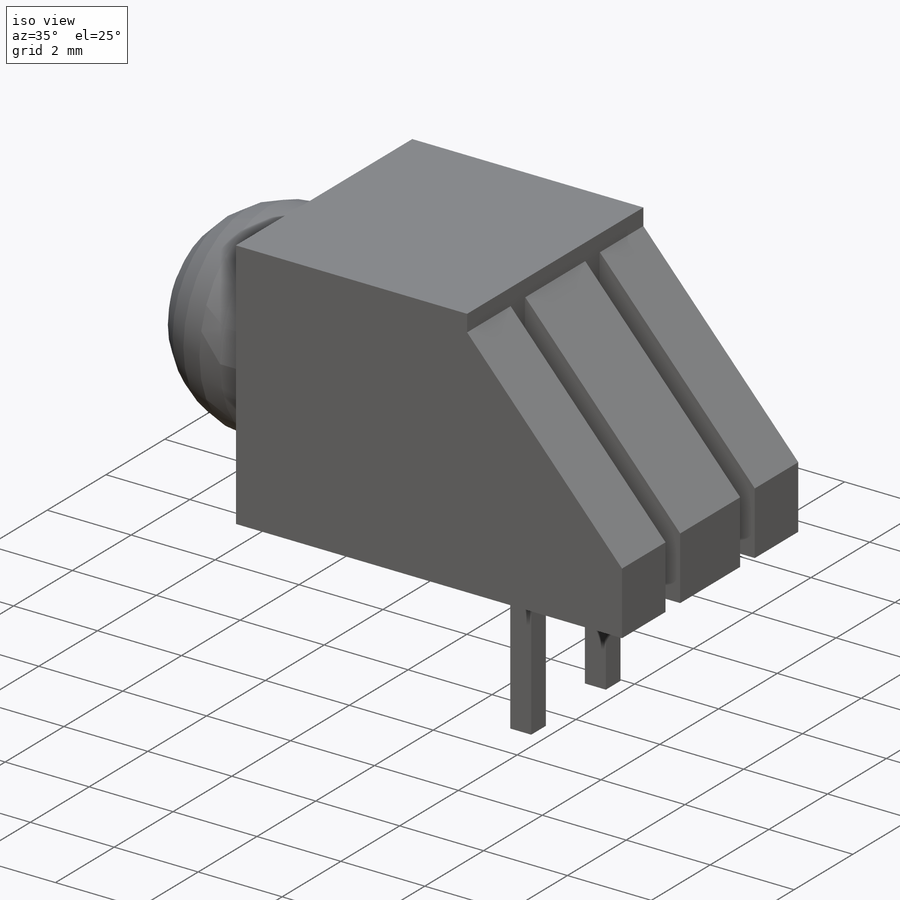
[diagram: iso view]
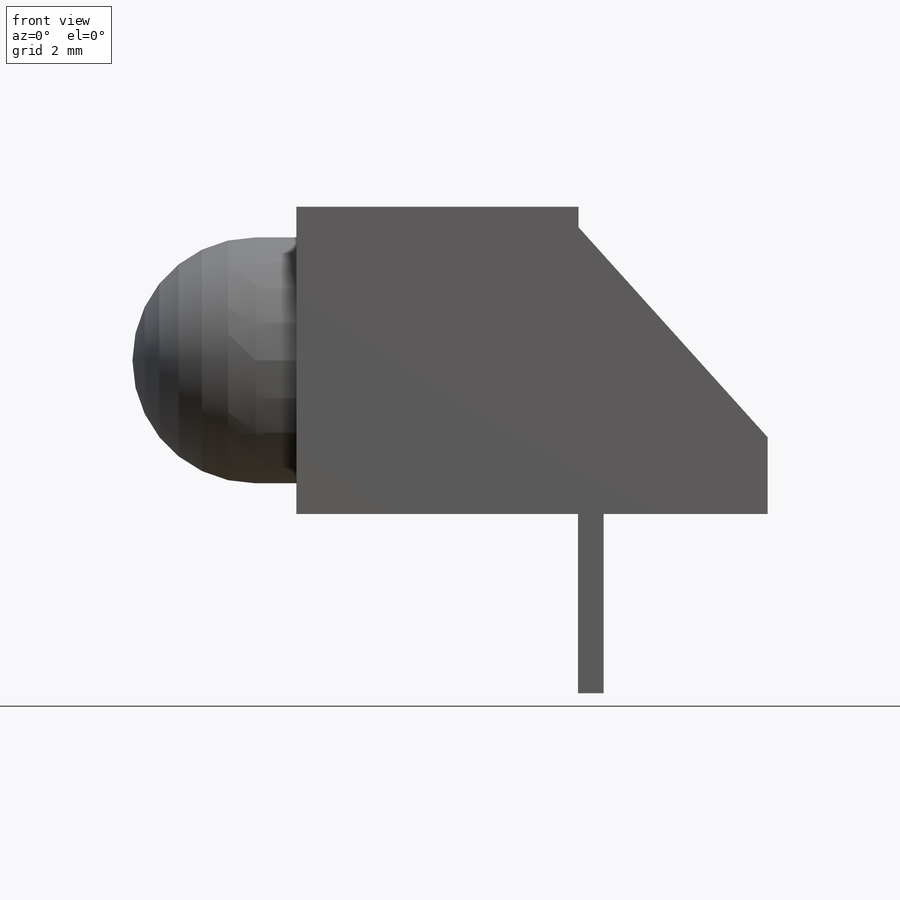
[diagram: front view]
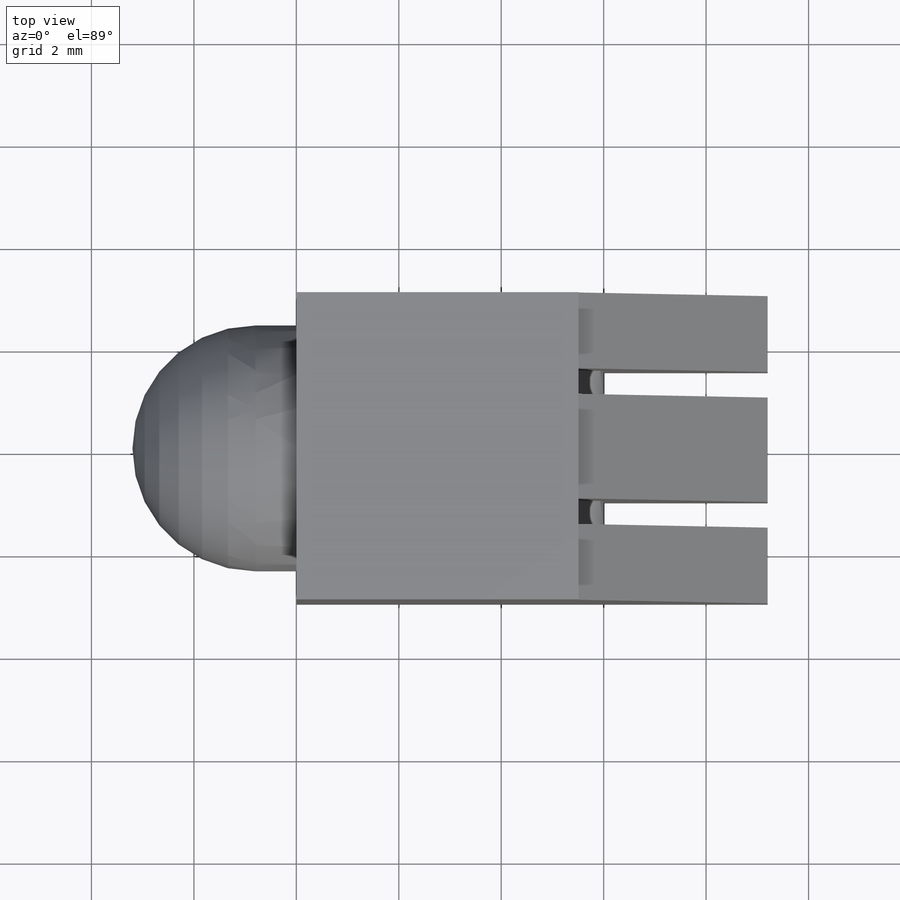
[diagram: top view]
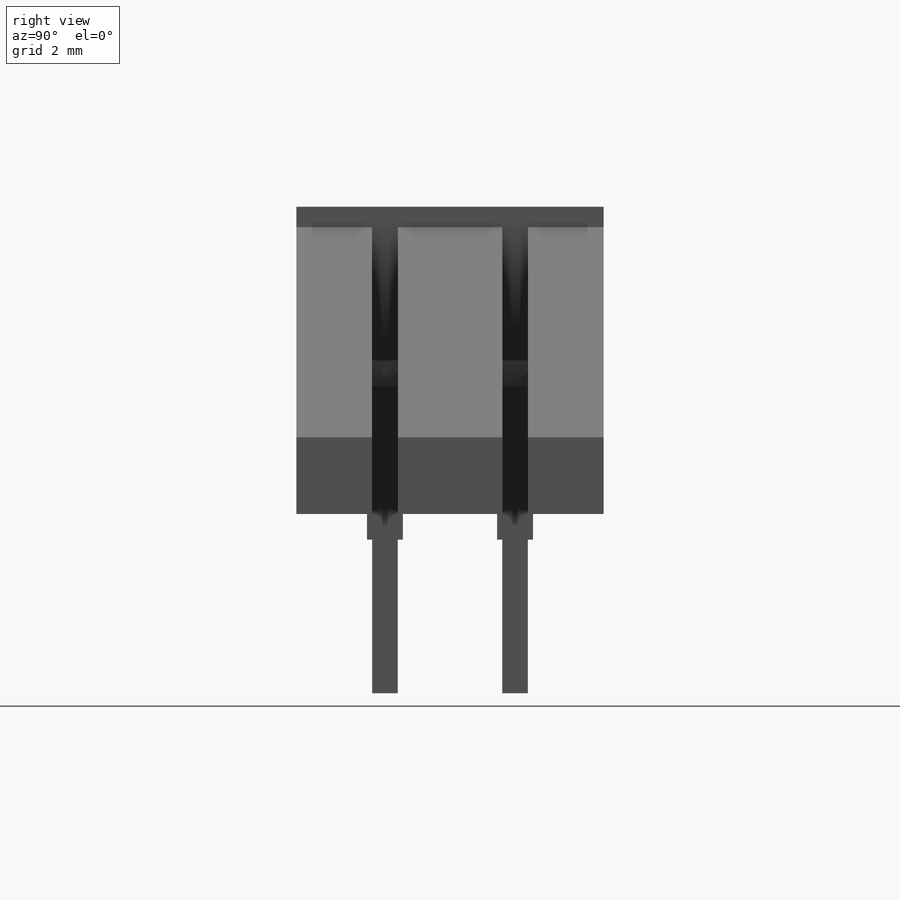
[diagram: right view]
SOLIDWORKS PART (.sldprt)
format: sldprt  version: not decoded by parser v0  size: 718,336 bytes
history: native  units: mm
features: sketch x8, extrude x4, cut_extrude x3, material x1, revolve x1, fillet x1 (+12 scaffold rows collapsed)
feature tree (30):
  scaffold x12  (default folders/planes/origin — collapsed)
  material  "Material <not specified>"
  sketch  "Sketch1"  dims[c1.D1=6.0mm c1.D2=1.5mm c1.D3=~4.795559mm c2.D3=42.0deg c2.D4=0.4mm c2.D5=9.2mm]
  extrude  "Extrude1"  Depth=6mm
  sketch  "Sketch3"  dims[D1=3.2mm D2=2.4mm]
  revolve  "Revolve1"  Angle=360deg
  sketch  "Sketch4"  dims[D1=0.5mm D2=0.5mm D3=0.7mm D4=5.75mm D5=2.54mm]
  cut_extrude  "Cut-Extrude1"  [1 undecoded]
  cut_extrude  "Cut-Extrude2"  [1 undecoded]
  sketch  "Sketch4<3>"
  extrude  "Extrude2"  [1 undecoded]
  sketch  "Sketch4<4>"
  extrude  "Extrude3"  [1 undecoded]
  sketch  "Sketch4<5>"  dims[D1=3.5mm]
  extrude  "Extrude4"  [1 undecoded]
  sketch  "Sketch4<6>"  dims[D1=0.5mm]
  fillet  "Fillet1"  Radius=0.5mm
  sketch  "Sketch5"
  cut_extrude  "Cut-Extrude3"  Depth=0.01mm
decode coverage: 9 of 17 modeling features carry decoded parameters
note: ~ marks probable driven/reference dimensions
note: 5 parameter values undecoded
summary: no parameter record found for 5 features
note: suppression state not decoded; provenance and decode notes live in map.json
